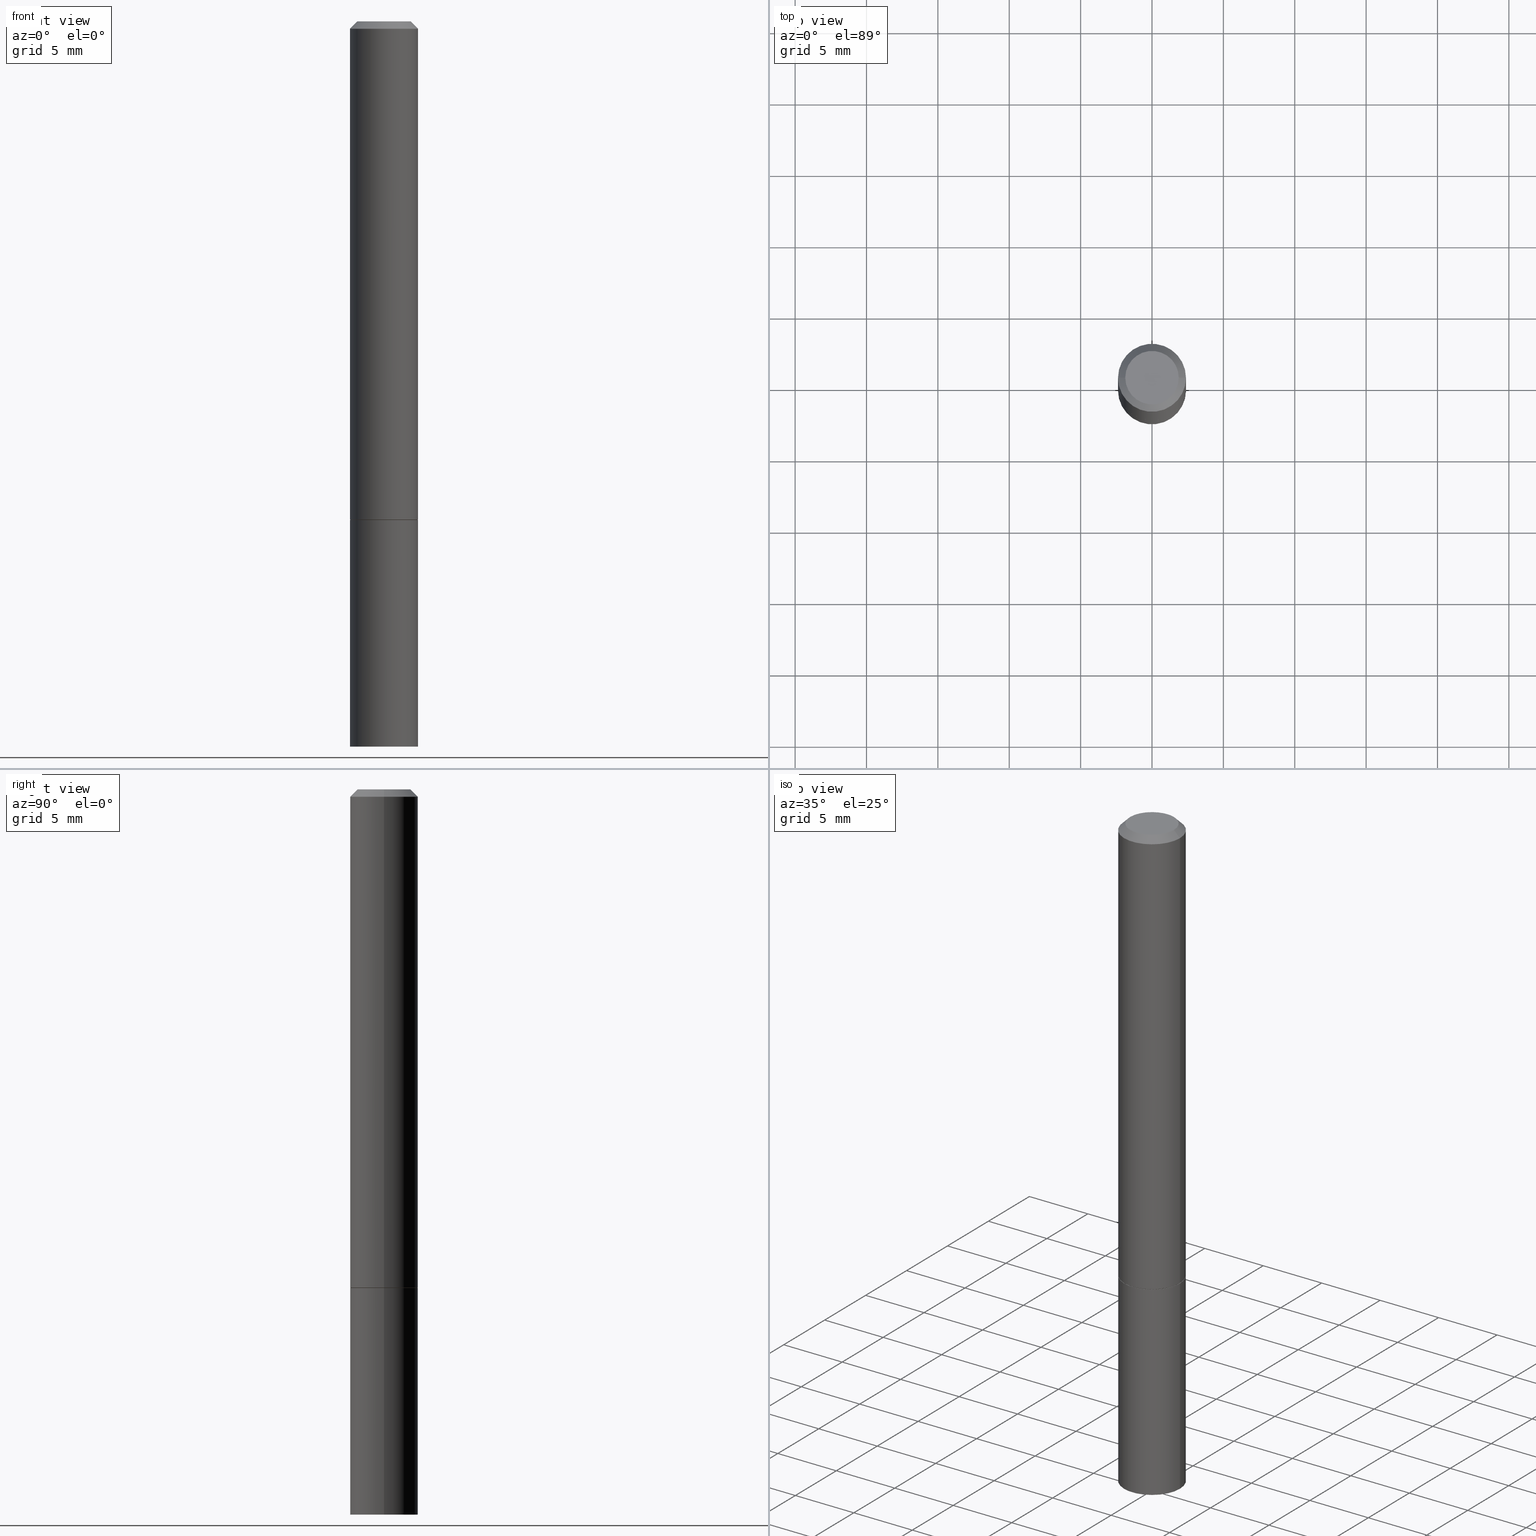
[diagram: canonical four-view strip — front | top / right | iso, engineering-drawing reading convention]
A machine part, canonical four-view strip (front | top / right | iso — engineering-drawing reading convention). The complete STEP part file that produces these views, byte-faithful:
ISO-10303-21;
HEADER;
FILE_DESCRIPTION (( 'STEP AP203' ),
    '1' );
FILE_NAME ('30002.STEP',
    '2023-03-21T20:20:16',
    ( '' ),
    ( '' ),
    'SwSTEP 2.0',
    'SolidWorks 2022',
    '' );
FILE_SCHEMA (( 'CONFIG_CONTROL_DESIGN' ));
ENDSEC;

DATA;
#1 = DATE_TIME_ROLE ( 'creation_date' ) ;
#2 = PERSON ( 'UNSPECIFIED', 'UNSPECIFIED', 'UNSPECIFIED', ('UNSPECIFIED'), ('UNSPECIFIED'), ('UNSPECIFIED') ) ;
#3 = EDGE_LOOP ( 'NONE', ( #341, #101, #163 ) ) ;
#4 = CYLINDRICAL_SURFACE ( 'NONE', #354, 0.09375000000000001388 ) ;
#5 = DATE_AND_TIME ( #241, #85 ) ;
#6 = ORIENTED_EDGE ( 'NONE', *, *, #20, .T. ) ;
#7 = EDGE_CURVE ( 'NONE', #302, #10, #353, .T. ) ;
#8 = CARTESIAN_POINT ( 'NONE',  ( 0.000000000000000000, 0.000000000000000000, 0.000000000000000000 ) ) ;
#9 = DIRECTION ( 'NONE',  ( -1.000000000000000000, 6.982962677686266711E-15, 0.000000000000000000 ) ) ;
#10 = VERTEX_POINT ( 'NONE', #131 ) ;
#11 = DIRECTION ( 'NONE',  ( -2.445468806185136597E-29, 3.491481338843145583E-15, 1.000000000000000000 ) ) ;
#12 = ORIENTED_EDGE ( 'NONE', *, *, #7, .F. ) ;
#13 = CARTESIAN_POINT ( 'NONE',  ( -0.09374999999999991673, 6.661338147750933326E-16, -4.611501647113969791E-30 ) ) ;
#14 = ORIENTED_EDGE ( 'NONE', *, *, #20, .F. ) ;
#15 = CARTESIAN_POINT ( 'NONE',  ( 4.890937612370278413E-31, -6.982962677686297772E-17, -0.02000000000000002123 ) ) ;
#16 = CIRCLE ( 'NONE', #202, 0.09375000000000001388 ) ;
#17 = DIRECTION ( 'NONE',  ( -2.445468806185136877E-29, 3.491481338843145188E-15, 1.000000000000000000 ) ) ;
#18 = EDGE_LOOP ( 'NONE', ( #75, #46, #125, #305 ) ) ;
#19 = CIRCLE ( 'NONE', #117, 0.09274999999999998523 ) ;
#20 = EDGE_CURVE ( 'NONE', #10, #302, #377, .T. ) ;
#21 = LINE ( 'NONE', #231, #218 ) ;
#22 = AXIS2_PLACEMENT_3D ( 'NONE', #70, #43, #220 ) ;
#23 = DIRECTION ( 'NONE',  ( -2.445468806185136597E-29, 3.491481338843145583E-15, 1.000000000000000000 ) ) ;
#24 = CC_DESIGN_APPROVAL ( #207, ( #115 ) ) ;
#25 = ADVANCED_FACE ( 'NONE', ( #219 ), #186, .F. ) ;
#26 = DIRECTION ( 'NONE',  ( -2.445468806185136597E-29, 3.491481338843145583E-15, 1.000000000000000000 ) ) ;
#27 = PERSON_AND_ORGANIZATION_ROLE ( 'creator' ) ;
#28 = DIRECTION ( 'NONE',  ( -2.445468806185136597E-29, 3.491481338843145583E-15, 1.000000000000000000 ) ) ;
#29 = FACE_OUTER_BOUND ( 'NONE', #64, .T. ) ;
#30 = DIRECTION ( 'NONE',  ( -0.7071067811866259545, 7.493145998870638150E-15, 0.7071067811864690800 ) ) ;
#31 = PERSON_AND_ORGANIZATION_ROLE ( 'classification_officer' ) ;
#32 = CIRCLE ( 'NONE', #240, 0.09375000000000001388 ) ;
#33 = CYLINDRICAL_SURFACE ( 'NONE', #321, 0.09374999999999991673 ) ;
#34 = CALENDAR_DATE ( 2023, 21, 3 ) ;
#35 = ADVANCED_FACE ( 'NONE', ( #176 ), #337, .F. ) ;
#36 = ORIENTED_EDGE ( 'NONE', *, *, #381, .F. ) ;
#37 = EDGE_CURVE ( 'NONE', #310, #382, #390, .T. ) ;
#38 = ORGANIZATION ( 'UNSPECIFIED', 'UNSPECIFIED', '' ) ;
#39 = VECTOR ( 'NONE', #113, 39.37007874015748143 ) ;
#40 = CARTESIAN_POINT ( 'NONE',  ( 1.011572219194682015E-27, -1.444257034592898076E-13, -41.36516551084969251 ) ) ;
#41 = ORIENTED_EDGE ( 'NONE', *, *, #335, .F. ) ;
#42 = CARTESIAN_POINT ( 'NONE',  ( 3.362519608504562260E-29, -4.800786840909324930E-15, -1.375000000000000000 ) ) ;
#43 = DIRECTION ( 'NONE',  ( -2.445468806185136597E-29, 3.491481338843145583E-15, 1.000000000000000000 ) ) ;
#44 = ORIENTED_EDGE ( 'NONE', *, *, #255, .F. ) ;
#45 = ORIENTED_EDGE ( 'NONE', *, *, #62, .T. ) ;
#46 = ORIENTED_EDGE ( 'NONE', *, *, #122, .T. ) ;
#47 = EDGE_LOOP ( 'NONE', ( #6, #132 ) ) ;
#48 = DIMENSIONAL_EXPONENTS ( 1.000000000000000000, 0.000000000000000000, 0.000000000000000000, 0.000000000000000000, 0.000000000000000000, 0.000000000000000000, 0.000000000000000000 ) ;
#49 = DIRECTION ( 'NONE',  ( -1.000000000000000000, 6.982962677686265922E-15, -4.876176775795935793E-29 ) ) ;
#50 = DIRECTION ( 'NONE',  ( 1.000000000000000000, -6.982962677686267499E-15, 4.876176775795935793E-29 ) ) ;
#51 = ADVANCED_FACE ( 'NONE', ( #300 ), #33, .T. ) ;
#52 = CARTESIAN_POINT ( 'NONE',  ( 0.000000000000000000, 0.000000000000000000, 0.000000000000000000 ) ) ;
#53 = AXIS2_PLACEMENT_3D ( 'NONE', #58, #28, #266 ) ;
#54 = CARTESIAN_POINT ( 'NONE',  ( 0.000000000000000000, 0.000000000000000000, 0.000000000000000000 ) ) ;
#55 = EDGE_CURVE ( 'NONE', #98, #192, #152, .T. ) ;
#56 = FACE_OUTER_BOUND ( 'NONE', #182, .T. ) ;
#57 = CARTESIAN_POINT ( 'NONE',  ( -0.09274999999999998523, -4.141758453491831225E-15, -1.374999999999999778 ) ) ;
#58 = CARTESIAN_POINT ( 'NONE',  ( 4.890937612370273194E-29, -6.982962677686291165E-15, -2.000000000000000000 ) ) ;
#59 = PRODUCT_RELATED_PRODUCT_CATEGORY ( 'detail', '', ( #251 ) ) ;
#60 = DIRECTION ( 'NONE',  ( -1.000000000000000000, 6.982962677686267499E-15, 0.000000000000000000 ) ) ;
#61 = APPROVAL_STATUS ( 'not_yet_approved' ) ;
#62 = EDGE_CURVE ( 'NONE', #276, #313, #368, .T. ) ;
#63 = DIRECTION ( 'NONE',  ( 2.445468806185136597E-29, -3.491481338843145583E-15, -1.000000000000000000 ) ) ;
#64 = EDGE_LOOP ( 'NONE', ( #41, #246, #188, #280 ) ) ;
#65 = PERSON_AND_ORGANIZATION ( #2, #38 ) ;
#66 = EDGE_LOOP ( 'NONE', ( #329, #155, #45, #312 ) ) ;
#67 = APPROVAL_PERSON_ORGANIZATION ( #273, #207, #327 ) ;
#68 = FACE_OUTER_BOUND ( 'NONE', #18, .T. ) ;
#69 = AXIS2_PLACEMENT_3D ( 'NONE', #110, #138, #227 ) ;
#70 = CARTESIAN_POINT ( 'NONE',  ( 3.362519608504561700E-29, -4.800786840909324141E-15, -1.374999999999999778 ) ) ;
#71 = ORIENTED_EDGE ( 'NONE', *, *, #297, .F. ) ;
#72 = AXIS2_PLACEMENT_3D ( 'NONE', #42, #357, #129 ) ;
#73 = ORIENTED_EDGE ( 'NONE', *, *, #335, .T. ) ;
#74 = AXIS2_PLACEMENT_3D ( 'NONE', #92, #63, #149 ) ;
#75 = ORIENTED_EDGE ( 'NONE', *, *, #55, .F. ) ;
#76 = DIRECTION ( 'NONE',  ( -2.445468806185136597E-29, 3.491481338843145583E-15, 1.000000000000000000 ) ) ;
#77 = CC_DESIGN_PERSON_AND_ORGANIZATION_ASSIGNMENT ( #172, #27, ( #226 ) ) ;
#78 = DIRECTION ( 'NONE',  ( 1.000000000000000000, -6.982962677686262766E-15, 0.000000000000000000 ) ) ;
#79 = DIRECTION ( 'NONE',  ( 1.000000000000000000, -6.982962677686267499E-15, 0.000000000000000000 ) ) ;
#80 = ADVANCED_BREP_SHAPE_REPRESENTATION ( '30002', ( #242, #373, #332 ), #264 ) ;
#81 = DIRECTION ( 'NONE',  ( -2.445468806185136877E-29, 3.491481338843145188E-15, 1.000000000000000000 ) ) ;
#82 = DIRECTION ( 'NONE',  ( -2.445468806185136877E-29, 3.491481338843145188E-15, 1.000000000000000000 ) ) ;
#83 = VECTOR ( 'NONE', #191, 39.37007874015748143 ) ;
#84 = DIRECTION ( 'NONE',  ( 0.000000000000000000, 0.000000000000000000, 1.000000000000000000 ) ) ;
#85 = LOCAL_TIME ( 16, 20, 16.00000000000000000, #330 ) ;
#86 = LENGTH_MEASURE_WITH_UNIT ( LENGTH_MEASURE( 0.02539999999999999897 ), #384 );
#87 = VECTOR ( 'NONE', #136, 39.37007874015748854 ) ;
#88 = CARTESIAN_POINT ( 'NONE',  ( 4.890937612370278413E-31, -6.982962677686297772E-17, -0.02000000000000002123 ) ) ;
#89 = ADVANCED_FACE ( 'NONE', ( #272 ), #4, .T. ) ;
#90 = APPLICATION_PROTOCOL_DEFINITION ( 'international standard', 'config_control_design', 1994, #229 ) ;
#91 = DATE_AND_TIME ( #301, #236 ) ;
#92 = CARTESIAN_POINT ( 'NONE',  ( 1.011572219194682015E-27, -1.444257034592898076E-13, -41.36516551084969251 ) ) ;
#93 = PERSON_AND_ORGANIZATION ( #2, #38 ) ;
#94 = ORIENTED_EDGE ( 'NONE', *, *, #37, .T. ) ;
#95 = DIRECTION ( 'NONE',  ( 1.000000000000000000, -6.982962677686265922E-15, 4.876176775795935793E-29 ) ) ;
#96 = SHAPE_DEFINITION_REPRESENTATION ( #190, #80 ) ;
#97 = ORIENTED_EDGE ( 'NONE', *, *, #350, .T. ) ;
#98 = VERTEX_POINT ( 'NONE', #277 ) ;
#99 = AXIS2_PLACEMENT_3D ( 'NONE', #194, #26, #257 ) ;
#100 = ORIENTED_EDGE ( 'NONE', *, *, #381, .T. ) ;
#101 = ORIENTED_EDGE ( 'NONE', *, *, #383, .T. ) ;
#102 = VERTEX_POINT ( 'NONE', #212 ) ;
#103 = CIRCLE ( 'NONE', #253, 0.09274999999999998523 ) ;
#104 = LINE ( 'NONE', #165, #87 ) ;
#105 = ADVANCED_FACE ( 'NONE', ( #68 ), #156, .T. ) ;
#106 = PRODUCT_DEFINITION_FORMATION_WITH_SPECIFIED_SOURCE ( 'ANY', '', #251, .NOT_KNOWN. ) ;
#107 = ADVANCED_FACE ( 'NONE', ( #181 ), #290, .F. ) ;
#108 = CARTESIAN_POINT ( 'NONE',  ( -0.09375000000000001388, -5.225740944522714123E-15, -1.375000000000000000 ) ) ;
#109 = CARTESIAN_POINT ( 'NONE',  ( -0.09374999999999983347, 5.848231242562234171E-16, -0.02000000000000002123 ) ) ;
#110 = CARTESIAN_POINT ( 'NONE',  ( 4.890937612370278413E-31, -6.982962677686297772E-17, -0.02000000000000002123 ) ) ;
#111 = CARTESIAN_POINT ( 'NONE',  ( 3.360074139698377778E-29, -4.797295359570481134E-15, -1.373999999999999888 ) ) ;
#112 = DATE_AND_TIME ( #201, #167 ) ;
#113 = DIRECTION ( 'NONE',  ( 0.7071067811865466846, -7.319954787623252890E-15, -0.7071067811865483499 ) ) ;
#114 = ADVANCED_FACE ( 'NONE', ( #333 ), #371, .T. ) ;
#115 = SECURITY_CLASSIFICATION ( '', '', #124 ) ;
#116 = CARTESIAN_POINT ( 'NONE',  ( 3.360074139698377778E-29, -4.797295359570481134E-15, -1.373999999999999888 ) ) ;
#117 = AXIS2_PLACEMENT_3D ( 'NONE', #284, #281, #348 ) ;
#118 = LINE ( 'NONE', #385, #374 ) ;
#119 = CLOSED_SHELL ( 'NONE', ( #145, #25, #107, #89, #35 ) ) ;
#120 = DIRECTION ( 'NONE',  ( -2.445468806185136597E-29, 3.491481338843145583E-15, 1.000000000000000000 ) ) ;
#121 = APPROVAL_STATUS ( 'not_yet_approved' ) ;
#122 = EDGE_CURVE ( 'NONE', #98, #313, #32, .T. ) ;
#123 = DIRECTION ( 'NONE',  ( 1.000000000000000000, -6.982962677686261189E-15, 0.000000000000000000 ) ) ;
#124 = SECURITY_CLASSIFICATION_LEVEL ( 'unclassified' ) ;
#125 = ORIENTED_EDGE ( 'NONE', *, *, #297, .T. ) ;
#126 = CARTESIAN_POINT ( 'NONE',  ( 3.362519608504562260E-29, -4.800786840909324930E-15, -1.375000000000000000 ) ) ;
#127 = PERSON_AND_ORGANIZATION_ROLE ( 'creator' ) ;
#128 = VERTEX_POINT ( 'NONE', #344 ) ;
#129 = DIRECTION ( 'NONE',  ( 1.000000000000000000, -6.982962677686261189E-15, 0.000000000000000000 ) ) ;
#130 = EDGE_LOOP ( 'NONE', ( #158, #97, #36, #161 ) ) ;
#131 = CARTESIAN_POINT ( 'NONE',  ( 0.09375000000000001388, -5.455439591942412434E-15, -1.375000000000000000 ) ) ;
#132 = ORIENTED_EDGE ( 'NONE', *, *, #7, .T. ) ;
#133 = VERTEX_POINT ( 'NONE', #320 ) ;
#134 = EDGE_CURVE ( 'NONE', #276, #370, #103, .T. ) ;
#135 = CIRCLE ( 'NONE', #349, 0.07374999999999985734 ) ;
#136 = DIRECTION ( 'NONE',  ( 0.9986295347545742773, -7.033825938272001856E-15, -0.05233595624293820026 ) ) ;
#137 = LOCAL_TIME ( 16, 20, 16.00000000000000000, #358 ) ;
#138 = DIRECTION ( 'NONE',  ( 2.445468806185136597E-29, -3.491481338843145583E-15, -1.000000000000000000 ) ) ;
#139 = AXIS2_PLACEMENT_3D ( 'NONE', #15, #142, #79 ) ;
#140 = DIRECTION ( 'NONE',  ( 1.000000000000000000, -6.982962677686261189E-15, 0.000000000000000000 ) ) ;
#141 = DESIGN_CONTEXT ( 'detailed design', #229, 'design' ) ;
#142 = DIRECTION ( 'NONE',  ( -2.445468806185136597E-29, 3.491481338843145583E-15, 1.000000000000000000 ) ) ;
#143 = PLANE ( 'NONE',  #387 ) ;
#144 = EDGE_CURVE ( 'NONE', #359, #128, #135, .T. ) ;
#145 = ADVANCED_FACE ( 'NONE', ( #56 ), #171, .T. ) ;
#146 = CARTESIAN_POINT ( 'NONE',  ( 0.07374999999999985734, -6.094815207017961198E-16, 3.931526600461598749E-30 ) ) ;
#147 = CIRCLE ( 'NONE', #256, 0.09374999999999983347 ) ;
#148 = PERSON_AND_ORGANIZATION ( #2, #38 ) ;
#149 = DIRECTION ( 'NONE',  ( -1.000000000000000000, 6.982962677686266711E-15, 0.000000000000000000 ) ) ;
#150 = DATE_AND_TIME ( #361, #285 ) ;
#151 = AXIS2_PLACEMENT_3D ( 'NONE', #40, #307, #9 ) ;
#152 = LINE ( 'NONE', #13, #170 ) ;
#153 = DATE_TIME_ROLE ( 'classification_date' ) ;
#154 = AXIS2_PLACEMENT_3D ( 'NONE', #88, #263, #60 ) ;
#155 = ORIENTED_EDGE ( 'NONE', *, *, #255, .T. ) ;
#156 = CYLINDRICAL_SURFACE ( 'NONE', #268, 0.09374999999999991673 ) ;
#157 = DIRECTION ( 'NONE',  ( -2.445468806185136597E-29, 3.491481338843145583E-15, 1.000000000000000000 ) ) ;
#158 = ORIENTED_EDGE ( 'NONE', *, *, #134, .T. ) ;
#159 = ADVANCED_FACE ( 'NONE', ( #315 ), #367, .T. ) ;
#160 = DIRECTION ( 'NONE',  ( 1.000000000000000000, -6.982962677686261189E-15, 0.000000000000000000 ) ) ;
#161 = ORIENTED_EDGE ( 'NONE', *, *, #62, .F. ) ;
#162 = DIRECTION ( 'NONE',  ( 2.438088387897960049E-29, -3.491481338843145188E-15, -1.000000000000000000 ) ) ;
#163 = ORIENTED_EDGE ( 'NONE', *, *, #342, .F. ) ;
#164 = ORIENTED_EDGE ( 'NONE', *, *, #271, .F. ) ;
#165 = CARTESIAN_POINT ( 'NONE',  ( 1.263157812918377981E-19, -6.965808229244704146E-15, -1.995086770692215294 ) ) ;
#166 = DIRECTION ( 'NONE',  ( 1.000000000000000000, -6.982962677686267499E-15, 0.000000000000000000 ) ) ;
#167 = LOCAL_TIME ( 16, 20, 16.00000000000000000, #298 ) ;
#168 = CARTESIAN_POINT ( 'NONE',  ( -0.09374999999999984734, -6.328309926653205239E-15, -2.000000000000000000 ) ) ;
#169 = FACE_OUTER_BOUND ( 'NONE', #228, .T. ) ;
#170 = VECTOR ( 'NONE', #250, 39.37007874015748143 ) ;
#171 = CYLINDRICAL_SURFACE ( 'NONE', #184, 0.09375000000000001388 ) ;
#172 = PERSON_AND_ORGANIZATION ( #2, #38 ) ;
#173 = CC_DESIGN_DATE_AND_TIME_ASSIGNMENT ( #91, #1, ( #226 ) ) ;
#174 = APPLICATION_PROTOCOL_DEFINITION ( 'international standard', 'config_control_design', 1994, #206 ) ;
#175 = APPROVAL_ROLE ( '' ) ;
#176 = FACE_OUTER_BOUND ( 'NONE', #47, .T. ) ;
#177 = DATE_AND_TIME ( #34, #137 ) ;
#178 = DIRECTION ( 'NONE',  ( 1.000000000000000000, -6.982962677686266711E-15, 4.876176775795935793E-29 ) ) ;
#179 = ORIENTED_EDGE ( 'NONE', *, *, #314, .F. ) ;
#180 = VECTOR ( 'NONE', #322, 39.37007874015748143 ) ;
#181 = FACE_OUTER_BOUND ( 'NONE', #3, .T. ) ;
#182 = EDGE_LOOP ( 'NONE', ( #252, #366, #14, #164 ) ) ;
#183 = APPROVAL ( #61, 'UNSPECIFIED' ) ;
#184 = AXIS2_PLACEMENT_3D ( 'NONE', #52, #23, #345 ) ;
#185 = EDGE_LOOP ( 'NONE', ( #249, #44 ) ) ;
#186 = CONICAL_SURFACE ( 'NONE', #74, 751.2258538476485228, 1.518436449235072372 ) ;
#187 = AXIS2_PLACEMENT_3D ( 'NONE', #275, #162, #279 ) ;
#188 = ORIENTED_EDGE ( 'NONE', *, *, #369, .T. ) ;
#189 = EDGE_CURVE ( 'NONE', #102, #192, #318, .T. ) ;
#190 = PRODUCT_DEFINITION_SHAPE ( 'NONE', 'NONE',  #226 ) ;
#191 = DIRECTION ( 'NONE',  ( 0.7071067811866259545, -2.468850131083078659E-15, 0.7071067811864690800 ) ) ;
#192 = VERTEX_POINT ( 'NONE', #109 ) ;
#193 = LINE ( 'NONE', #259, #204 ) ;
#194 = CARTESIAN_POINT ( 'NONE',  ( 3.362519608504561700E-29, -4.800786840909324141E-15, -1.374999999999999778 ) ) ;
#195 = DIRECTION ( 'NONE',  ( -2.438088387897960049E-29, 3.491481338843145188E-15, 1.000000000000000000 ) ) ;
#196 = CC_DESIGN_PERSON_AND_ORGANIZATION_ASSIGNMENT ( #93, #389, ( #106 ) ) ;
#197 = LINE ( 'NONE', #293, #39 ) ;
#198 = CIRCLE ( 'NONE', #336, 0.07374999999999985734 ) ;
#199 = DIRECTION ( 'NONE',  ( -2.445468806185136597E-29, 3.491481338843145583E-15, 1.000000000000000000 ) ) ;
#200 = ADVANCED_FACE ( 'NONE', ( #169 ), #289, .F. ) ;
#201 = CALENDAR_DATE ( 2023, 21, 3 ) ;
#202 = AXIS2_PLACEMENT_3D ( 'NONE', #116, #120, #295 ) ;
#203 = DIRECTION ( 'NONE',  ( 1.000000000000000000, 0.000000000000000000, 0.000000000000000000 ) ) ;
#204 = VECTOR ( 'NONE', #82, 39.37007874015748143 ) ;
#205 =( CONVERSION_BASED_UNIT ( 'INCH', #86 ) LENGTH_UNIT ( ) NAMED_UNIT ( #48 ) );
#206 = APPLICATION_CONTEXT ( 'configuration controlled 3d designs of mechanical parts and assemblies' ) ;
#207 = APPROVAL ( #121, 'UNSPECIFIED' ) ;
#208 = PERSON_AND_ORGANIZATION ( #2, #38 ) ;
#209 = PERSON_AND_ORGANIZATION ( #2, #38 ) ;
#210 = APPROVAL_DATE_TIME ( #150, #207 ) ;
#211 = ORIENTED_EDGE ( 'NONE', *, *, #265, .T. ) ;
#212 = CARTESIAN_POINT ( 'NONE',  ( 0.09374999999999983347, -7.130013140679429031E-16, -0.02000000000000002123 ) ) ;
#213 = APPROVAL ( #328, 'UNSPECIFIED' ) ;
#214 = APPROVAL_DATE_TIME ( #5, #213 ) ;
#215 = ORIENTED_EDGE ( 'NONE', *, *, #144, .F. ) ;
#216 = CONICAL_SURFACE ( 'NONE', #154, 0.09374999999999983347, 0.7853981633974471688 ) ;
#217 = ORIENTED_EDGE ( 'NONE', *, *, #271, .T. ) ;
#218 = VECTOR ( 'NONE', #81, 39.37007874015748143 ) ;
#219 = FACE_OUTER_BOUND ( 'NONE', #308, .T. ) ;
#220 = DIRECTION ( 'NONE',  ( 1.000000000000000000, -6.982962677686262766E-15, 0.000000000000000000 ) ) ;
#221 = ORIENTED_EDGE ( 'NONE', *, *, #283, .T. ) ;
#222 = DIRECTION ( 'NONE',  ( -2.445468806185136597E-29, 3.491481338843145583E-15, 1.000000000000000000 ) ) ;
#223 = ORIENTED_EDGE ( 'NONE', *, *, #383, .F. ) ;
#224 = CARTESIAN_POINT ( 'NONE',  ( 0.000000000000000000, 0.000000000000000000, 0.000000000000000000 ) ) ;
#225 = DIRECTION ( 'NONE',  ( -2.445468806185136597E-29, 3.491481338843145583E-15, 1.000000000000000000 ) ) ;
#226 = PRODUCT_DEFINITION ( 'UNKNOWN', '', #106, #141 ) ;
#227 = DIRECTION ( 'NONE',  ( -1.000000000000000000, 6.982962677686267499E-15, 0.000000000000000000 ) ) ;
#228 = EDGE_LOOP ( 'NONE', ( #211, #248 ) ) ;
#229 = APPLICATION_CONTEXT ( 'configuration controlled 3d designs of mechanical parts and assemblies' ) ;
#230 = CC_DESIGN_SECURITY_CLASSIFICATION ( #115, ( #106 ) ) ;
#231 = CARTESIAN_POINT ( 'NONE',  ( -0.09375000000000001388, 6.661338147750940229E-16, -4.611501647113973995E-30 ) ) ;
#232 = DIRECTION ( 'NONE',  ( -2.445468806185136597E-29, 3.491481338843145583E-15, 1.000000000000000000 ) ) ;
#233 = EDGE_CURVE ( 'NONE', #192, #102, #147, .T. ) ;
#234 = APPROVAL_DATE_TIME ( #112, #183 ) ;
#235 = CARTESIAN_POINT ( 'NONE',  ( -0.09274999999999998523, -4.136459999143609611E-15, -1.374999999999999778 ) ) ;
#236 = LOCAL_TIME ( 16, 20, 16.00000000000000000, #270 ) ;
#237 = CONICAL_SURFACE ( 'NONE', #69, 0.09374999999999983347, 0.7853981633974471688 ) ;
#238 = AXIS2_PLACEMENT_3D ( 'NONE', #126, #222, #123 ) ;
#239 = LINE ( 'NONE', #57, #267 ) ;
#240 = AXIS2_PLACEMENT_3D ( 'NONE', #111, #199, #140 ) ;
#241 = CALENDAR_DATE ( 2023, 21, 3 ) ;
#242 = MANIFOLD_SOLID_BREP ( 'Body-Move/Copy2[1]', #119 ) ;
#243 = ORIENTED_EDGE ( 'NONE', *, *, #55, .T. ) ;
#244 = CARTESIAN_POINT ( 'NONE',  ( 0.000000000000000000, 0.000000000000000000, 0.000000000000000000 ) ) ;
#245 = COORDINATED_UNIVERSAL_TIME_OFFSET ( 5, 0, .BEHIND. ) ;
#246 = ORIENTED_EDGE ( 'NONE', *, *, #265, .F. ) ;
#247 = CARTESIAN_POINT ( 'NONE',  ( 4.890937612370273194E-29, -6.982962677686291165E-15, -2.000000000000000000 ) ) ;
#248 = ORIENTED_EDGE ( 'NONE', *, *, #144, .T. ) ;
#249 = ORIENTED_EDGE ( 'NONE', *, *, #134, .F. ) ;
#250 = DIRECTION ( 'NONE',  ( -2.445468806185136877E-29, 3.491481338843145188E-15, 1.000000000000000000 ) ) ;
#251 = PRODUCT ( '30002', '30002', '', ( #296 ) ) ;
#252 = ORIENTED_EDGE ( 'NONE', *, *, #342, .T. ) ;
#253 = AXIS2_PLACEMENT_3D ( 'NONE', #346, #225, #78 ) ;
#254 = LINE ( 'NONE', #375, #306 ) ;
#255 = EDGE_CURVE ( 'NONE', #370, #276, #19, .T. ) ;
#256 = AXIS2_PLACEMENT_3D ( 'NONE', #317, #76, #166 ) ;
#257 = DIRECTION ( 'NONE',  ( 1.000000000000000000, -6.982962677686262766E-15, 0.000000000000000000 ) ) ;
#258 = CLOSED_SHELL ( 'NONE', ( #159, #51, #311, #364, #105, #114, #282, #200 ) ) ;
#259 = CARTESIAN_POINT ( 'NONE',  ( 0.09375000000000001388, -6.546527510330875041E-16, 4.571415727308690506E-30 ) ) ;
#260 = DIRECTION ( 'NONE',  ( 2.438088387897960049E-29, -3.491481338843145188E-15, -1.000000000000000000 ) ) ;
#261 =( NAMED_UNIT ( * ) PLANE_ANGLE_UNIT ( ) SI_UNIT ( $, .RADIAN. ) );
#262 = DIRECTION ( 'NONE',  ( -0.9986295347545742773, 6.790662755453662155E-15, -0.05233595624293820026 ) ) ;
#263 = DIRECTION ( 'NONE',  ( 2.445468806185136597E-29, -3.491481338843145583E-15, -1.000000000000000000 ) ) ;
#264 =( GEOMETRIC_REPRESENTATION_CONTEXT ( 3 ) GLOBAL_UNCERTAINTY_ASSIGNED_CONTEXT ( ( #288 ) ) GLOBAL_UNIT_ASSIGNED_CONTEXT ( ( #205, #261, #292 ) ) REPRESENTATION_CONTEXT ( 'NONE', 'WORKASPACE' ) );
#265 = EDGE_CURVE ( 'NONE', #128, #359, #198, .T. ) ;
#266 = DIRECTION ( 'NONE',  ( 1.000000000000000000, -6.982962677686261189E-15, 0.000000000000000000 ) ) ;
#267 = VECTOR ( 'NONE', #30, 39.37007874015748143 ) ;
#268 = AXIS2_PLACEMENT_3D ( 'NONE', #8, #157, #178 ) ;
#269 = DIRECTION ( 'NONE',  ( -2.445468806185136597E-29, 3.491481338843145583E-15, 1.000000000000000000 ) ) ;
#270 = COORDINATED_UNIVERSAL_TIME_OFFSET ( 5, 0, .BEHIND. ) ;
#271 = EDGE_CURVE ( 'NONE', #382, #10, #193, .T. ) ;
#272 = FACE_OUTER_BOUND ( 'NONE', #278, .T. ) ;
#273 = PERSON_AND_ORGANIZATION ( #2, #38 ) ;
#274 = ORIENTED_EDGE ( 'NONE', *, *, #189, .F. ) ;
#275 = CARTESIAN_POINT ( 'NONE',  ( 6.546527510331211293E-16, 0.09374999999999521216, -1.375000000000000222 ) ) ;
#276 = VERTEX_POINT ( 'NONE', #343 ) ;
#277 = CARTESIAN_POINT ( 'NONE',  ( -0.09375000000000001388, -1.767428678398575728E-15, -1.373999999999999888 ) ) ;
#278 = EDGE_LOOP ( 'NONE', ( #179, #94, #217, #12 ) ) ;
#279 = DIRECTION ( 'NONE',  ( -1.000000000000000000, 6.982962677686265922E-15, -4.876176775795935793E-29 ) ) ;
#280 = ORIENTED_EDGE ( 'NONE', *, *, #233, .T. ) ;
#281 = DIRECTION ( 'NONE',  ( -2.445468806185136597E-29, 3.491481338843145583E-15, 1.000000000000000000 ) ) ;
#282 = ADVANCED_FACE ( 'NONE', ( #291 ), #143, .F. ) ;
#283 = EDGE_CURVE ( 'NONE', #133, #382, #104, .T. ) ;
#284 = CARTESIAN_POINT ( 'NONE',  ( 3.362519608504561700E-29, -4.800786840909324141E-15, -1.374999999999999778 ) ) ;
#285 = LOCAL_TIME ( 16, 20, 16.00000000000000000, #245 ) ;
#286 = CIRCLE ( 'NONE', #53, 0.09375000000000001388 ) ;
#287 = CARTESIAN_POINT ( 'NONE',  ( 0.09375000000000001388, -5.451948110603568638E-15, -1.373999999999999888 ) ) ;
#288 = UNCERTAINTY_MEASURE_WITH_UNIT (LENGTH_MEASURE( 1.000000000000000082E-05 ), #205, 'distance_accuracy_value', 'NONE');
#289 = PLANE ( 'NONE',  #376 ) ;
#290 = CONICAL_SURFACE ( 'NONE', #151, 751.2258538476485228, 1.518436449235072372 ) ;
#291 = FACE_OUTER_BOUND ( 'NONE', #185, .T. ) ;
#292 =( NAMED_UNIT ( * ) SI_UNIT ( $, .STERADIAN. ) SOLID_ANGLE_UNIT ( ) );
#293 = CARTESIAN_POINT ( 'NONE',  ( 0.09374999999999983347, -7.130013140679429031E-16, -0.02000000000000002123 ) ) ;
#294 = CC_DESIGN_PERSON_AND_ORGANIZATION_ASSIGNMENT ( #148, #355, ( #251 ) ) ;
#295 = DIRECTION ( 'NONE',  ( 1.000000000000000000, -6.982962677686261189E-15, 0.000000000000000000 ) ) ;
#296 = MECHANICAL_CONTEXT ( 'NONE', #206, 'mechanical' ) ;
#297 = EDGE_CURVE ( 'NONE', #313, #102, #254, .T. ) ;
#298 = COORDINATED_UNIVERSAL_TIME_OFFSET ( 5, 0, .BEHIND. ) ;
#299 = APPROVAL_ROLE ( '' ) ;
#300 = FACE_OUTER_BOUND ( 'NONE', #362, .T. ) ;
#301 = CALENDAR_DATE ( 2023, 21, 3 ) ;
#302 = VERTEX_POINT ( 'NONE', #108 ) ;
#303 = CC_DESIGN_APPROVAL ( #213, ( #106 ) ) ;
#304 = DIRECTION ( 'NONE',  ( 1.000000000000000000, -6.982962677686266711E-15, 4.876176775795935793E-29 ) ) ;
#305 = ORIENTED_EDGE ( 'NONE', *, *, #233, .F. ) ;
#306 = VECTOR ( 'NONE', #17, 39.37007874015748143 ) ;
#307 = DIRECTION ( 'NONE',  ( 2.445468806185136597E-29, -3.491481338843145583E-15, -1.000000000000000000 ) ) ;
#308 = EDGE_LOOP ( 'NONE', ( #223, #221, #338 ) ) ;
#309 = CC_DESIGN_PERSON_AND_ORGANIZATION_ASSIGNMENT ( #209, #31, ( #115 ) ) ;
#310 = VERTEX_POINT ( 'NONE', #168 ) ;
#311 = ADVANCED_FACE ( 'NONE', ( #379 ), #237, .T. ) ;
#312 = ORIENTED_EDGE ( 'NONE', *, *, #122, .F. ) ;
#313 = VERTEX_POINT ( 'NONE', #287 ) ;
#314 = EDGE_CURVE ( 'NONE', #310, #302, #21, .T. ) ;
#315 = FACE_OUTER_BOUND ( 'NONE', #130, .T. ) ;
#316 = CARTESIAN_POINT ( 'NONE',  ( 5.149934974793612035E-16, 0.07374999999999985734, -2.574967487396814892E-16 ) ) ;
#317 = CARTESIAN_POINT ( 'NONE',  ( 4.890937612370278413E-31, -6.982962677686297772E-17, -0.02000000000000002123 ) ) ;
#318 = CIRCLE ( 'NONE', #139, 0.09374999999999983347 ) ;
#319 = DIRECTION ( 'NONE',  ( -2.445468806185136597E-29, 3.491481338843145583E-15, 1.000000000000000000 ) ) ;
#320 = CARTESIAN_POINT ( 'NONE',  ( 4.879010669199053508E-29, -6.965681913463461924E-15, -1.995086770692215294 ) ) ;
#321 = AXIS2_PLACEMENT_3D ( 'NONE', #363, #269, #304 ) ;
#322 = DIRECTION ( 'NONE',  ( -0.7071067811865466846, 2.468850131082247989E-15, -0.7071067811865483499 ) ) ;
#323 = APPROVAL_PERSON_ORGANIZATION ( #65, #213, #299 ) ;
#324 = CARTESIAN_POINT ( 'NONE',  ( -0.09374999999999983347, 5.848231242562234171E-16, -0.02000000000000002123 ) ) ;
#325 = CC_DESIGN_PERSON_AND_ORGANIZATION_ASSIGNMENT ( #356, #127, ( #106 ) ) ;
#326 = CARTESIAN_POINT ( 'NONE',  ( 0.000000000000000000, 0.000000000000000000, 0.000000000000000000 ) ) ;
#327 = APPROVAL_ROLE ( '' ) ;
#328 = APPROVAL_STATUS ( 'not_yet_approved' ) ;
#329 = ORIENTED_EDGE ( 'NONE', *, *, #350, .F. ) ;
#330 = COORDINATED_UNIVERSAL_TIME_OFFSET ( 5, 0, .BEHIND. ) ;
#331 = EDGE_LOOP ( 'NONE', ( #215, #73, #365, #334 ) ) ;
#332 = AXIS2_PLACEMENT_3D ( 'NONE', #326, #84, #203 ) ;
#333 = FACE_OUTER_BOUND ( 'NONE', #66, .T. ) ;
#334 = ORIENTED_EDGE ( 'NONE', *, *, #369, .F. ) ;
#335 = EDGE_CURVE ( 'NONE', #359, #102, #197, .T. ) ;
#336 = AXIS2_PLACEMENT_3D ( 'NONE', #224, #232, #380 ) ;
#337 = PLANE ( 'NONE',  #187 ) ;
#338 = ORIENTED_EDGE ( 'NONE', *, *, #37, .F. ) ;
#339 = CARTESIAN_POINT ( 'NONE',  ( 0.09274999999999998523, -5.448456629264724842E-15, -1.374999999999999778 ) ) ;
#340 = AXIS2_PLACEMENT_3D ( 'NONE', #247, #11, #160 ) ;
#341 = ORIENTED_EDGE ( 'NONE', *, *, #283, .F. ) ;
#342 = EDGE_CURVE ( 'NONE', #382, #310, #286, .T. ) ;
#343 = CARTESIAN_POINT ( 'NONE',  ( 0.09274999999999998523, -5.448456629264724842E-15, -1.374999999999999778 ) ) ;
#344 = CARTESIAN_POINT ( 'NONE',  ( -0.07374999999999985734, 5.499083108677923596E-16, -3.723527850031187664E-30 ) ) ;
#345 = DIRECTION ( 'NONE',  ( 1.000000000000000000, -6.982962677686265922E-15, 4.876176775795935793E-29 ) ) ;
#346 = CARTESIAN_POINT ( 'NONE',  ( 3.362519608504561700E-29, -4.800786840909324141E-15, -1.374999999999999778 ) ) ;
#347 = CC_DESIGN_DATE_AND_TIME_ASSIGNMENT ( #177, #153, ( #115 ) ) ;
#348 = DIRECTION ( 'NONE',  ( 1.000000000000000000, -6.982962677686262766E-15, 0.000000000000000000 ) ) ;
#349 = AXIS2_PLACEMENT_3D ( 'NONE', #54, #319, #50 ) ;
#350 = EDGE_CURVE ( 'NONE', #370, #98, #239, .T. ) ;
#351 = APPROVAL_PERSON_ORGANIZATION ( #208, #183, #175 ) ;
#352 = LINE ( 'NONE', #324, #180 ) ;
#353 = CIRCLE ( 'NONE', #238, 0.09375000000000001388 ) ;
#354 = AXIS2_PLACEMENT_3D ( 'NONE', #244, #360, #95 ) ;
#355 = PERSON_AND_ORGANIZATION_ROLE ( 'design_owner' ) ;
#356 = PERSON_AND_ORGANIZATION ( #2, #38 ) ;
#357 = DIRECTION ( 'NONE',  ( -2.445468806185136597E-29, 3.491481338843145583E-15, 1.000000000000000000 ) ) ;
#358 = COORDINATED_UNIVERSAL_TIME_OFFSET ( 5, 0, .BEHIND. ) ;
#359 = VERTEX_POINT ( 'NONE', #146 ) ;
#360 = DIRECTION ( 'NONE',  ( -2.445468806185136597E-29, 3.491481338843145583E-15, 1.000000000000000000 ) ) ;
#361 = CALENDAR_DATE ( 2023, 21, 3 ) ;
#362 = EDGE_LOOP ( 'NONE', ( #100, #243, #274, #71 ) ) ;
#363 = CARTESIAN_POINT ( 'NONE',  ( 0.000000000000000000, 0.000000000000000000, 0.000000000000000000 ) ) ;
#364 = ADVANCED_FACE ( 'NONE', ( #29 ), #216, .T. ) ;
#365 = ORIENTED_EDGE ( 'NONE', *, *, #189, .T. ) ;
#366 = ORIENTED_EDGE ( 'NONE', *, *, #314, .T. ) ;
#367 = CONICAL_SURFACE ( 'NONE', #99, 0.09274999999999998523, 0.7853981633975591903 ) ;
#368 = LINE ( 'NONE', #339, #83 ) ;
#369 = EDGE_CURVE ( 'NONE', #128, #192, #352, .T. ) ;
#370 = VERTEX_POINT ( 'NONE', #235 ) ;
#371 = CONICAL_SURFACE ( 'NONE', #22, 0.09274999999999998523, 0.7853981633975591903 ) ;
#372 = CARTESIAN_POINT ( 'NONE',  ( 3.362519608504562260E-29, -4.800786840909324930E-15, -1.375000000000000000 ) ) ;
#373 = MANIFOLD_SOLID_BREP ( 'Body-Move/Copy2[2]', #258 ) ;
#374 = VECTOR ( 'NONE', #262, 39.37007874015748854 ) ;
#375 = CARTESIAN_POINT ( 'NONE',  ( 0.09374999999999991673, -6.546527510330869125E-16, 4.571415727308685602E-30 ) ) ;
#376 = AXIS2_PLACEMENT_3D ( 'NONE', #316, #260, #49 ) ;
#377 = CIRCLE ( 'NONE', #72, 0.09375000000000001388 ) ;
#378 = DIRECTION ( 'NONE',  ( 1.000000000000000000, -6.982962677686265922E-15, 4.876176775795935793E-29 ) ) ;
#379 = FACE_OUTER_BOUND ( 'NONE', #331, .T. ) ;
#380 = DIRECTION ( 'NONE',  ( 1.000000000000000000, -6.982962677686267499E-15, 4.876176775795935793E-29 ) ) ;
#381 = EDGE_CURVE ( 'NONE', #313, #98, #16, .T. ) ;
#382 = VERTEX_POINT ( 'NONE', #388 ) ;
#383 = EDGE_CURVE ( 'NONE', #133, #310, #118, .T. ) ;
#384 =( LENGTH_UNIT ( ) NAMED_UNIT ( * ) SI_UNIT ( $, .METRE. ) );
#385 = CARTESIAN_POINT ( 'NONE',  ( -1.263157811942593297E-19, -6.965808229244704146E-15, -1.995086770692215294 ) ) ;
#386 = CC_DESIGN_APPROVAL ( #183, ( #226 ) ) ;
#387 = AXIS2_PLACEMENT_3D ( 'NONE', #372, #195, #378 ) ;
#388 = CARTESIAN_POINT ( 'NONE',  ( 0.09374999999999984734, -7.626134364977371460E-15, -2.000000000000000000 ) ) ;
#389 = PERSON_AND_ORGANIZATION_ROLE ( 'design_supplier' ) ;
#390 = CIRCLE ( 'NONE', #340, 0.09375000000000001388 ) ;
ENDSEC;
END-ISO-10303-21;
